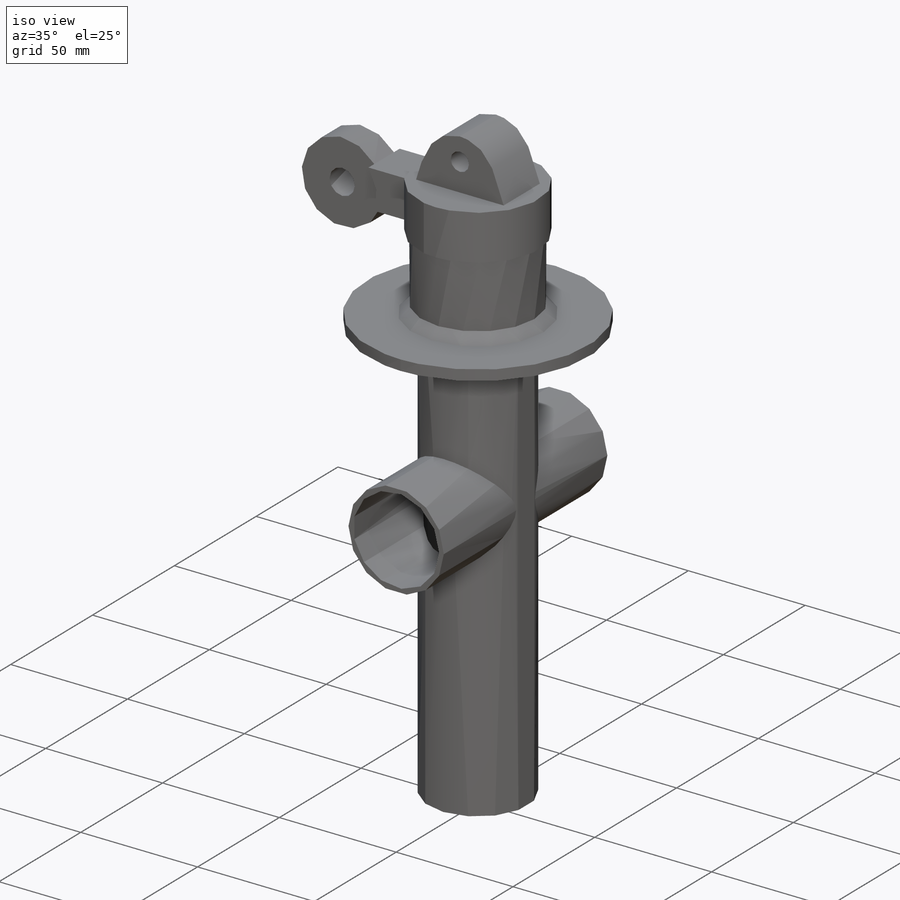
[diagram: iso view]
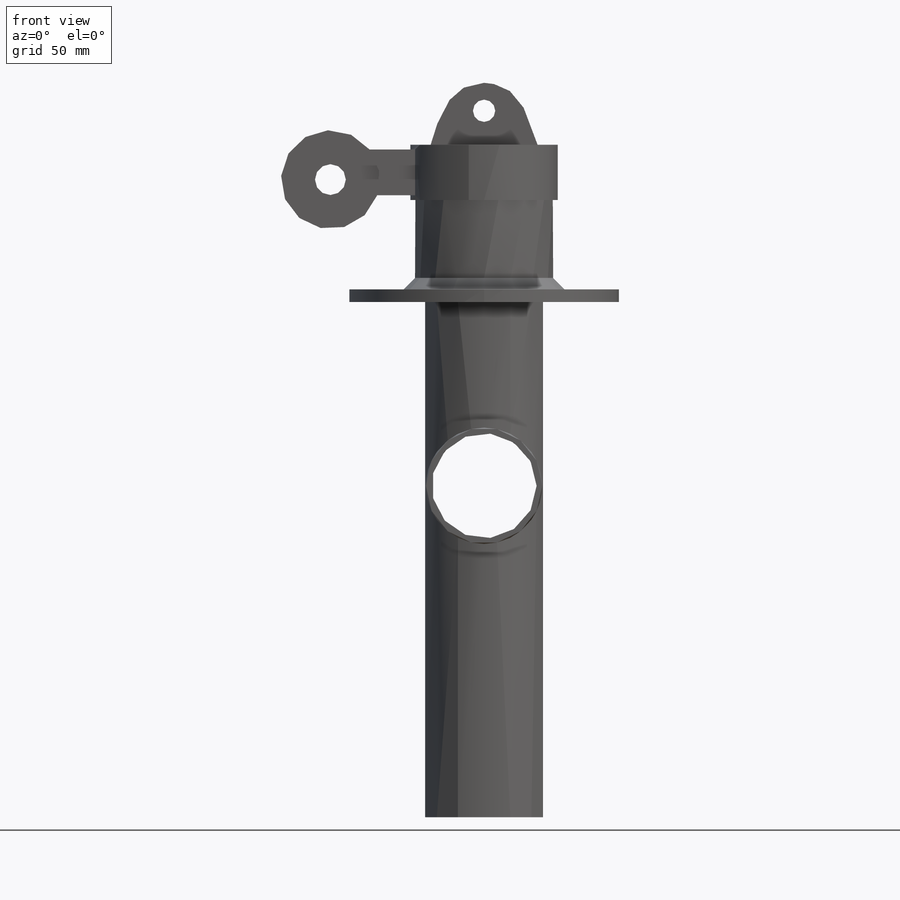
[diagram: front view]
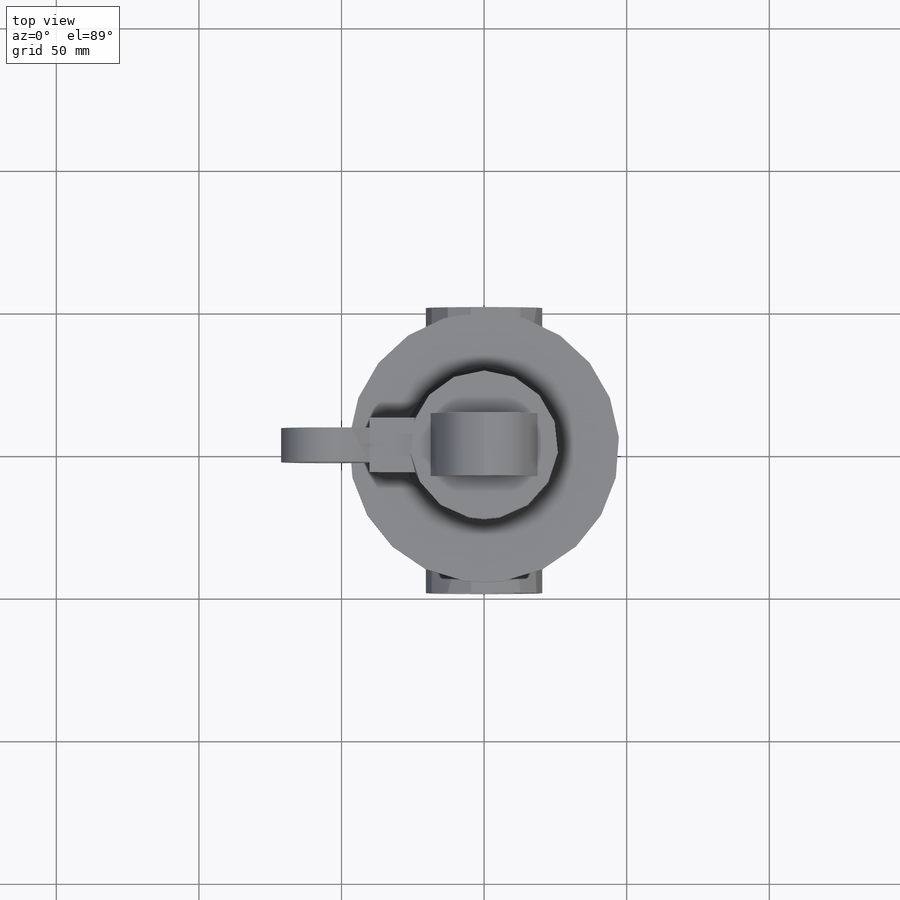
[diagram: top view]
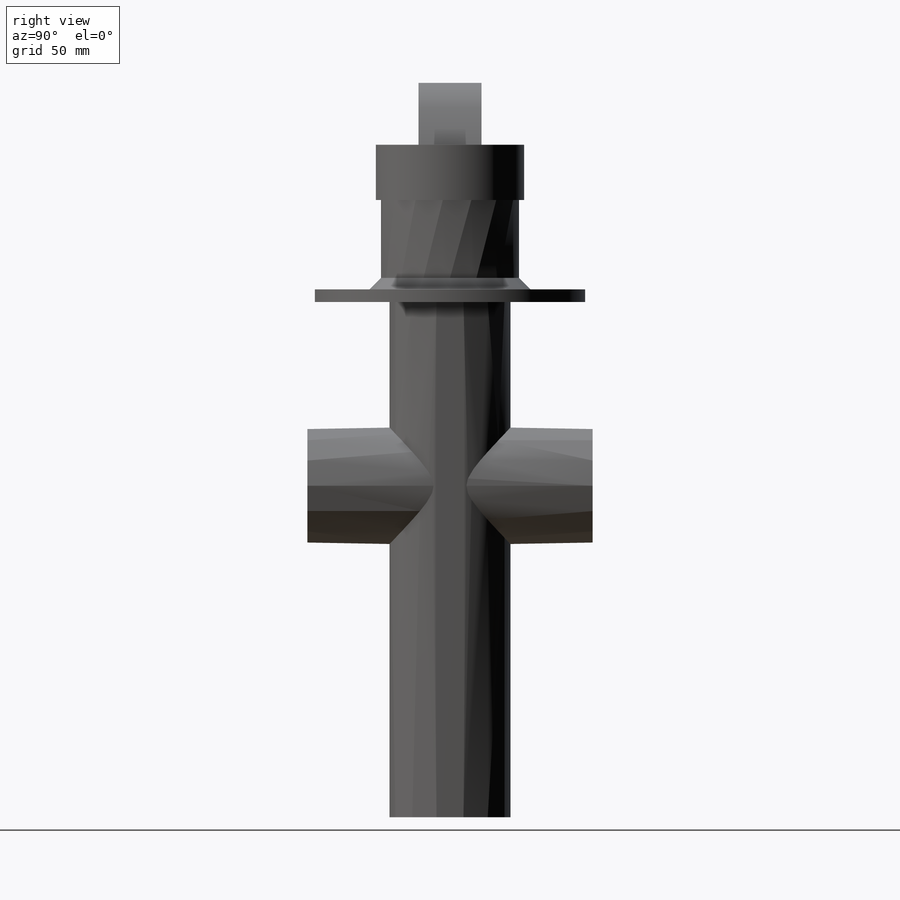
[diagram: right view]
SOLIDWORKS PART (.sldprt)
format: sldprt  version: not decoded by parser v0  size: 3,561,472 bytes
history: native  units: mm
features: sketch x5, plane x2, extrude x2, material x1, shell x1, cut_extrude x1 (+13 scaffold rows collapsed)
feature tree (25):
  scaffold x13  (default folders/planes/origin — collapsed)
  material  "Material <not specified>"
  plane  "Plane1"  Offset=1mm
  plane  "Plane2"  Offset=10mm
  sketch  "Sketch2"  dims[D1=22.5mm D2=22.5mm]
  sketch  "Sketch6"  dims[c1.D1=~42.395822mm c1.D2=~180.647627mm c1.D3=~31.309755mm c1.D4=~51.966766mm c1.D5=~94.760928mm c1.D6=~5.196677mm c1.D7=~19.395214mm c2.D6=~48.428638mm c2.D8=~4.431169mm c2.D9=~9.476093mm]
  sketch  "Sketch7"
  extrude  "Boss-Extrude1"  [1 undecoded]
  sketch  "Sketch12"
  extrude  "Boss-Extrude6"  Depth=100mm
  shell  "Shell1"  Thickness=2mm
  sketch  "Sketch13"
  cut_extrude  "Cut-Extrude1"  Depth=22mm
decode coverage: 5 of 9 modeling features carry decoded parameters
note: ~ marks probable driven/reference dimensions
note: 1 parameter value undecoded
note: suppression state not decoded; provenance and decode notes live in map.json
